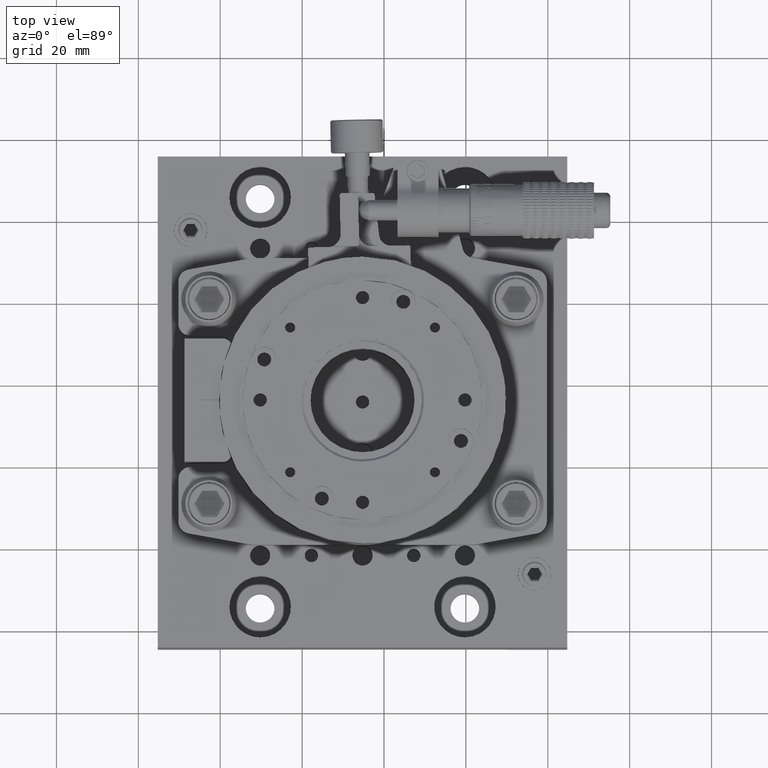
[diagram: clean part render]
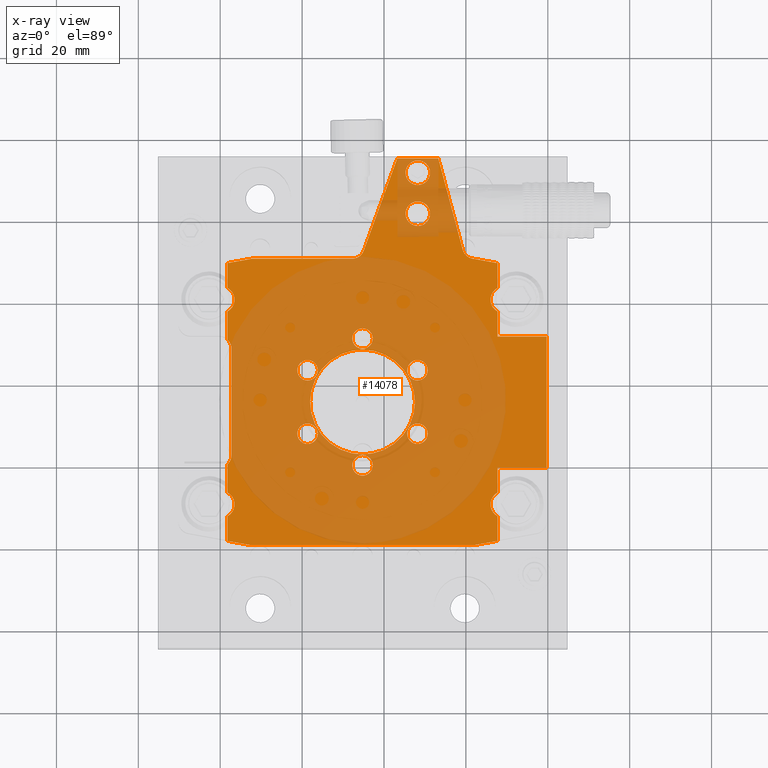
[diagram: x-ray — body ghosted, one internal face saturated and labeled with its STEP entity id]
A machine part, top view, then the same camera in x-ray: the body is ghosted and one INTERNAL B-rep face — a face not visible from any outside direction — is saturated and labeled: STEP entity #14078.
In plain terms, the highlighted planar face has unit normal (0, 0, -1).
Its self-contained STEP definition (entity closure, byte-faithful):
#8376=FACE_BOUND('',#26593,.T.);
#8377=FACE_BOUND('',#26594,.T.);
#8378=FACE_BOUND('',#26595,.T.);
#8379=FACE_BOUND('',#26596,.T.);
#8380=FACE_BOUND('',#26597,.T.);
#8381=FACE_BOUND('',#26598,.T.);
#8382=FACE_BOUND('',#26599,.T.);
#8383=FACE_BOUND('',#26600,.T.);
#8384=FACE_BOUND('',#26601,.T.);
#14078=ADVANCED_FACE('',(#20103,#8376,#8377,#8378,#8379,#8380,#8381,#8382,
#8383,#8384),#110130,.T.);
#20103=FACE_OUTER_BOUND('',#26592,.T.);
#26592=EDGE_LOOP('',(#58531,#58532,#58533,#58534,#58535,#58536,#58537,#58538,
#58539,#58540,#58541,#58542,#58543,#58544,#58545,#58546,#58547,#58548,#58549,
#58550,#58551,#58552,#58553,#58554,#58555,#58556,#58557,#58558,#58559));
#26593=EDGE_LOOP('',(#58560,#58561,#58562,#58563));
#26594=EDGE_LOOP('',(#58564,#58565,#58566,#58567));
#26595=EDGE_LOOP('',(#58568,#58569,#58570,#58571));
#26596=EDGE_LOOP('',(#58572,#58573,#58574,#58575));
#26597=EDGE_LOOP('',(#58576,#58577,#58578,#58579));
#26598=EDGE_LOOP('',(#58580,#58581,#58582,#58583));
#26599=EDGE_LOOP('',(#58584,#58585,#58586,#58587));
#26600=EDGE_LOOP('',(#58588,#58589,#58590,#58591));
#26601=EDGE_LOOP('',(#58592,#58593));
#58531=ORIENTED_EDGE('',*,*,#76863,.F.);
#58532=ORIENTED_EDGE('',*,*,#77106,.F.);
#58533=ORIENTED_EDGE('',*,*,#76864,.F.);
#58534=ORIENTED_EDGE('',*,*,#77097,.F.);
#58535=ORIENTED_EDGE('',*,*,#76856,.T.);
#58536=ORIENTED_EDGE('',*,*,#77011,.F.);
#58537=ORIENTED_EDGE('',*,*,#76854,.T.);
#58538=ORIENTED_EDGE('',*,*,#77086,.F.);
#58539=ORIENTED_EDGE('',*,*,#76865,.F.);
#58540=ORIENTED_EDGE('',*,*,#77077,.F.);
#58541=ORIENTED_EDGE('',*,*,#76866,.F.);
#58542=ORIENTED_EDGE('',*,*,#77020,.F.);
#58543=ORIENTED_EDGE('',*,*,#76867,.F.);
#58544=ORIENTED_EDGE('',*,*,#77066,.F.);
#58545=ORIENTED_EDGE('',*,*,#76868,.F.);
#58546=ORIENTED_EDGE('',*,*,#76935,.F.);
#58547=ORIENTED_EDGE('',*,*,#76932,.F.);
#58548=ORIENTED_EDGE('',*,*,#76869,.F.);
#58549=ORIENTED_EDGE('',*,*,#76915,.F.);
#58550=ORIENTED_EDGE('',*,*,#76912,.F.);
#58551=ORIENTED_EDGE('',*,*,#76907,.F.);
#58552=ORIENTED_EDGE('',*,*,#76860,.T.);
#58553=ORIENTED_EDGE('',*,*,#76901,.F.);
#58554=ORIENTED_EDGE('',*,*,#76870,.F.);
#58555=ORIENTED_EDGE('',*,*,#76871,.F.);
#58556=ORIENTED_EDGE('',*,*,#76872,.F.);
#58557=ORIENTED_EDGE('',*,*,#76873,.F.);
#58558=ORIENTED_EDGE('',*,*,#76848,.T.);
#58559=ORIENTED_EDGE('',*,*,#76890,.F.);
#58560=ORIENTED_EDGE('',*,*,#76953,.T.);
#58561=ORIENTED_EDGE('',*,*,#76952,.T.);
#58562=ORIENTED_EDGE('',*,*,#77137,.F.);
#58563=ORIENTED_EDGE('',*,*,#76957,.F.);
#58564=ORIENTED_EDGE('',*,*,#76960,.T.);
#58565=ORIENTED_EDGE('',*,*,#76959,.T.);
#58566=ORIENTED_EDGE('',*,*,#77140,.F.);
#58567=ORIENTED_EDGE('',*,*,#76964,.F.);
#58568=ORIENTED_EDGE('',*,*,#76967,.T.);
#58569=ORIENTED_EDGE('',*,*,#76966,.T.);
#58570=ORIENTED_EDGE('',*,*,#77143,.F.);
#58571=ORIENTED_EDGE('',*,*,#76971,.F.);
#58572=ORIENTED_EDGE('',*,*,#76974,.T.);
#58573=ORIENTED_EDGE('',*,*,#76973,.T.);
#58574=ORIENTED_EDGE('',*,*,#77146,.F.);
#58575=ORIENTED_EDGE('',*,*,#76978,.F.);
#58576=ORIENTED_EDGE('',*,*,#76981,.T.);
#58577=ORIENTED_EDGE('',*,*,#76980,.T.);
#58578=ORIENTED_EDGE('',*,*,#77149,.F.);
#58579=ORIENTED_EDGE('',*,*,#76985,.F.);
#58580=ORIENTED_EDGE('',*,*,#77151,.F.);
#58581=ORIENTED_EDGE('',*,*,#76987,.F.);
#58582=ORIENTED_EDGE('',*,*,#76992,.T.);
#58583=ORIENTED_EDGE('',*,*,#76991,.T.);
#58584=ORIENTED_EDGE('',*,*,#76939,.T.);
#58585=ORIENTED_EDGE('',*,*,#76938,.T.);
#58586=ORIENTED_EDGE('',*,*,#77131,.F.);
#58587=ORIENTED_EDGE('',*,*,#76943,.F.);
#58588=ORIENTED_EDGE('',*,*,#76946,.T.);
#58589=ORIENTED_EDGE('',*,*,#76945,.T.);
#58590=ORIENTED_EDGE('',*,*,#77134,.F.);
#58591=ORIENTED_EDGE('',*,*,#76950,.F.);
#58592=ORIENTED_EDGE('',*,*,#76999,.F.);
#58593=ORIENTED_EDGE('',*,*,#76998,.F.);
#76848=EDGE_CURVE('',#104945,#104943,#92379,.T.);
#76854=EDGE_CURVE('',#104948,#104950,#92385,.T.);
#76856=EDGE_CURVE('',#104953,#104951,#92387,.T.);
#76860=EDGE_CURVE('',#104957,#104955,#92391,.T.);
#76863=EDGE_CURVE('',#104960,#104959,#92394,.T.);
#76864=EDGE_CURVE('',#104962,#104961,#92395,.T.);
#76865=EDGE_CURVE('',#104964,#104963,#92396,.T.);
#76866=EDGE_CURVE('',#104966,#104965,#92397,.T.);
#76867=EDGE_CURVE('',#104968,#104967,#92398,.T.);
#76868=EDGE_CURVE('',#104970,#104969,#92399,.T.);
#76869=EDGE_CURVE('',#104973,#104972,#92400,.T.);
#76870=EDGE_CURVE('',#104977,#104976,#92401,.T.);
#76871=EDGE_CURVE('',#104978,#104977,#92402,.T.);
#76872=EDGE_CURVE('',#104979,#104978,#92403,.T.);
#76873=EDGE_CURVE('',#104945,#104979,#92404,.T.);
#76890=EDGE_CURVE('',#104959,#104943,#94435,.T.);
#76901=EDGE_CURVE('',#104976,#104955,#94439,.T.);
#76907=EDGE_CURVE('',#104957,#104975,#92430,.T.);
#76912=EDGE_CURVE('',#104975,#104974,#94443,.T.);
#76915=EDGE_CURVE('',#104974,#104973,#92436,.T.);
#76932=EDGE_CURVE('',#104972,#104971,#92453,.T.);
#76935=EDGE_CURVE('',#104971,#104970,#94445,.T.);
#76938=EDGE_CURVE('',#105051,#104992,#94447,.T.);
#76939=EDGE_CURVE('',#104993,#105051,#94448,.T.);
#76943=EDGE_CURVE('',#104993,#105141,#94452,.T.);
#76945=EDGE_CURVE('',#105056,#104994,#94453,.T.);
#76946=EDGE_CURVE('',#104995,#105056,#94454,.T.);
#76950=EDGE_CURVE('',#104995,#105143,#94458,.T.);
#76952=EDGE_CURVE('',#105061,#104980,#94459,.T.);
#76953=EDGE_CURVE('',#104981,#105061,#94460,.T.);
#76957=EDGE_CURVE('',#104981,#105145,#94464,.T.);
#76959=EDGE_CURVE('',#105066,#104982,#94465,.T.);
#76960=EDGE_CURVE('',#104983,#105066,#94466,.T.);
#76964=EDGE_CURVE('',#104983,#105147,#94470,.T.);
#76966=EDGE_CURVE('',#105071,#104984,#94471,.T.);
#76967=EDGE_CURVE('',#104985,#105071,#94472,.T.);
#76971=EDGE_CURVE('',#104985,#105149,#94476,.T.);
#76973=EDGE_CURVE('',#105076,#104986,#94477,.T.);
#76974=EDGE_CURVE('',#104987,#105076,#94478,.T.);
#76978=EDGE_CURVE('',#104987,#105151,#94482,.T.);
#76980=EDGE_CURVE('',#105081,#104988,#94483,.T.);
#76981=EDGE_CURVE('',#104989,#105081,#94484,.T.);
#76985=EDGE_CURVE('',#104989,#105153,#94488,.T.);
#76987=EDGE_CURVE('',#104990,#105155,#94489,.T.);
#76991=EDGE_CURVE('',#105089,#104991,#94493,.T.);
#76992=EDGE_CURVE('',#104990,#105089,#94494,.T.);
#76998=EDGE_CURVE('',#104997,#104996,#94498,.T.);
#76999=EDGE_CURVE('',#104996,#104997,#94499,.T.);
#77011=EDGE_CURVE('',#104948,#104951,#94505,.T.);
#77020=EDGE_CURVE('',#104967,#104966,#94509,.T.);
#77066=EDGE_CURVE('',#104969,#104968,#92500,.T.);
#77077=EDGE_CURVE('',#104965,#104964,#94536,.T.);
#77086=EDGE_CURVE('',#104963,#104950,#94541,.T.);
#77097=EDGE_CURVE('',#104953,#104962,#92517,.T.);
#77106=EDGE_CURVE('',#104961,#104960,#92526,.T.);
#77131=EDGE_CURVE('',#105141,#104992,#94559,.T.);
#77134=EDGE_CURVE('',#105143,#104994,#94561,.T.);
#77137=EDGE_CURVE('',#105145,#104980,#94563,.T.);
#77140=EDGE_CURVE('',#105147,#104982,#94565,.T.);
#77143=EDGE_CURVE('',#105149,#104984,#94567,.T.);
#77146=EDGE_CURVE('',#105151,#104986,#94569,.T.);
#77149=EDGE_CURVE('',#105153,#104988,#94571,.T.);
#77151=EDGE_CURVE('',#105155,#104991,#94572,.T.);
#92379=B_SPLINE_CURVE_WITH_KNOTS('',1,(#188936,#188937),.UNSPECIFIED.,.F.,
 .F.,(2,2),(-6.1168593513323,0.),.UNSPECIFIED.);
#92385=B_SPLINE_CURVE_WITH_KNOTS('',1,(#188948,#188949),.UNSPECIFIED.,.F.,
 .F.,(2,2),(-6.8807913738324,0.),.UNSPECIFIED.);
#92387=B_SPLINE_CURVE_WITH_KNOTS('',1,(#188952,#188953),.UNSPECIFIED.,.F.,
 .F.,(2,2),(-6.03728895565673,0.),.UNSPECIFIED.);
#92391=B_SPLINE_CURVE_WITH_KNOTS('',1,(#188960,#188961),.UNSPECIFIED.,.F.,
 .F.,(2,2),(-6.0372889556568,0.),.UNSPECIFIED.);
#92394=B_SPLINE_CURVE_WITH_KNOTS('',1,(#188966,#188967),.UNSPECIFIED.,.F.,
 .F.,(2,2),(-6.03728895565672,0.),.UNSPECIFIED.);
#92395=B_SPLINE_CURVE_WITH_KNOTS('',1,(#188968,#188969),.UNSPECIFIED.,.F.,
 .F.,(2,2),(-54.,0.),.UNSPECIFIED.);
#92396=B_SPLINE_CURVE_WITH_KNOTS('',1,(#188970,#188971),.UNSPECIFIED.,.F.,
 .F.,(2,2),(-26.,0.),.UNSPECIFIED.);
#92397=B_SPLINE_CURVE_WITH_KNOTS('',1,(#188972,#188973),.UNSPECIFIED.,.F.,
 .F.,(2,2),(-6.8807913738325,0.),.UNSPECIFIED.);
#92398=B_SPLINE_CURVE_WITH_KNOTS('',1,(#188974,#188975),.UNSPECIFIED.,.F.,
 .F.,(2,2),(-6.0372889556566,0.),.UNSPECIFIED.);
#92399=B_SPLINE_CURVE_WITH_KNOTS('',1,(#188976,#188977),.UNSPECIFIED.,.F.,
 .F.,(2,2),(-24.482106645849,0.),.UNSPECIFIED.);
#92400=B_SPLINE_CURVE_WITH_KNOTS('',1,(#188978,#188979),.UNSPECIFIED.,.F.,
 .F.,(2,2),(-10.,0.),.UNSPECIFIED.);
#92401=B_SPLINE_CURVE_WITH_KNOTS('',1,(#188980,#188981),.UNSPECIFIED.,.F.,
 .F.,(2,2),(-6.1168593513322,0.),.UNSPECIFIED.);
#92402=B_SPLINE_CURVE_WITH_KNOTS('',1,(#188982,#188983),.UNSPECIFIED.,.F.,
 .F.,(2,2),(-12.,0.),.UNSPECIFIED.);
#92403=B_SPLINE_CURVE_WITH_KNOTS('',1,(#188984,#188985),.UNSPECIFIED.,.F.,
 .F.,(2,2),(-32.0000000000001,0.),.UNSPECIFIED.);
#92404=B_SPLINE_CURVE_WITH_KNOTS('',1,(#188986,#188987),.UNSPECIFIED.,.F.,
 .F.,(2,2),(-12.,0.),.UNSPECIFIED.);
#92430=B_SPLINE_CURVE_WITH_KNOTS('',1,(#189070,#189071),.UNSPECIFIED.,.F.,
 .F.,(2,2),(0.,6.25841408754498),.UNSPECIFIED.);
#92436=B_SPLINE_CURVE_WITH_KNOTS('',1,(#189088,#189089),.UNSPECIFIED.,.F.,
 .F.,(2,2),(0.,23.081659550635),.UNSPECIFIED.);
#92453=B_SPLINE_CURVE_WITH_KNOTS('',1,(#189122,#189123),.UNSPECIFIED.,.F.,
 .F.,(2,2),(0.,23.9717328110307),.UNSPECIFIED.);
#92500=B_SPLINE_CURVE_WITH_KNOTS('',1,(#189543,#189544),.UNSPECIFIED.,.F.,
 .F.,(2,2),(0.,6.09634909099047),.UNSPECIFIED.);
#92517=B_SPLINE_CURVE_WITH_KNOTS('',1,(#189619,#189620),.UNSPECIFIED.,.F.,
 .F.,(2,2),(0.,6.09634909099047),.UNSPECIFIED.);
#92526=B_SPLINE_CURVE_WITH_KNOTS('',1,(#189637,#189638),.UNSPECIFIED.,.F.,
 .F.,(2,2),(0.,6.09634909099037),.UNSPECIFIED.);
#94435=(
BOUNDED_CURVE()
B_SPLINE_CURVE(2,(#189020,#189021,#189022,#189023,#189024),
 .UNSPECIFIED.,.F.,.F.)
B_SPLINE_CURVE_WITH_KNOTS((3,2,3),(0.,3.54596998963723,7.09193997927446),
 .UNSPECIFIED.)
CURVE()
GEOMETRIC_REPRESENTATION_ITEM()
RATIONAL_B_SPLINE_CURVE((1.,0.85485041426511,1.,0.85485041426511,1.))
REPRESENTATION_ITEM('')
);
#94439=(
BOUNDED_CURVE()
B_SPLINE_CURVE(2,(#189050,#189051,#189052,#189053,#189054),
 .UNSPECIFIED.,.F.,.F.)
B_SPLINE_CURVE_WITH_KNOTS((3,2,3),(0.,3.54596998963722,7.09193997927443),
 .UNSPECIFIED.)
CURVE()
GEOMETRIC_REPRESENTATION_ITEM()
RATIONAL_B_SPLINE_CURVE((1.,0.854850414265111,1.,0.854850414265111,1.))
REPRESENTATION_ITEM('')
);
#94443=(
BOUNDED_CURVE()
B_SPLINE_CURVE(2,(#189080,#189081,#189082),.UNSPECIFIED.,.F.,.F.)
B_SPLINE_CURVE_WITH_KNOTS((3,3),(0.,3.39292006587697),.UNSPECIFIED.)
CURVE()
GEOMETRIC_REPRESENTATION_ITEM()
RATIONAL_B_SPLINE_CURVE((1.,0.844327925502015,1.))
REPRESENTATION_ITEM('')
);
#94445=(
BOUNDED_CURVE()
B_SPLINE_CURVE(2,(#189128,#189129,#189130),.UNSPECIFIED.,.F.,.F.)
B_SPLINE_CURVE_WITH_KNOTS((3,3),(0.,3.66519142918808),.UNSPECIFIED.)
CURVE()
GEOMETRIC_REPRESENTATION_ITEM()
RATIONAL_B_SPLINE_CURVE((1.,0.819152044288989,1.))
REPRESENTATION_ITEM('')
);
#94447=(
BOUNDED_CURVE()
B_SPLINE_CURVE(2,(#189136,#189137,#189138),.UNSPECIFIED.,.F.,.F.)
B_SPLINE_CURVE_WITH_KNOTS((3,3),(-4.71238898038469,0.),.UNSPECIFIED.)
CURVE()
GEOMETRIC_REPRESENTATION_ITEM()
RATIONAL_B_SPLINE_CURVE((1.,0.707106781186548,1.))
REPRESENTATION_ITEM('')
);
#94448=(
BOUNDED_CURVE()
B_SPLINE_CURVE(2,(#189139,#189140,#189141),.UNSPECIFIED.,.F.,.F.)
B_SPLINE_CURVE_WITH_KNOTS((3,3),(-9.42477796076938,-4.71238898038469),
 .UNSPECIFIED.)
CURVE()
GEOMETRIC_REPRESENTATION_ITEM()
RATIONAL_B_SPLINE_CURVE((1.,0.707106781186548,1.))
REPRESENTATION_ITEM('')
);
#94452=(
BOUNDED_CURVE()
B_SPLINE_CURVE(2,(#189151,#189152,#189153),.UNSPECIFIED.,.F.,.F.)
B_SPLINE_CURVE_WITH_KNOTS((3,3),(0.,4.71238898038469),.UNSPECIFIED.)
CURVE()
GEOMETRIC_REPRESENTATION_ITEM()
RATIONAL_B_SPLINE_CURVE((1.,0.707106781186548,1.))
REPRESENTATION_ITEM('')
);
#94453=(
BOUNDED_CURVE()
B_SPLINE_CURVE(2,(#189156,#189157,#189158),.UNSPECIFIED.,.F.,.F.)
B_SPLINE_CURVE_WITH_KNOTS((3,3),(-4.71238898038469,0.),.UNSPECIFIED.)
CURVE()
GEOMETRIC_REPRESENTATION_ITEM()
RATIONAL_B_SPLINE_CURVE((1.,0.707106781186548,1.))
REPRESENTATION_ITEM('')
);
#94454=(
BOUNDED_CURVE()
B_SPLINE_CURVE(2,(#189159,#189160,#189161),.UNSPECIFIED.,.F.,.F.)
B_SPLINE_CURVE_WITH_KNOTS((3,3),(-9.42477796076938,-4.71238898038469),
 .UNSPECIFIED.)
CURVE()
GEOMETRIC_REPRESENTATION_ITEM()
RATIONAL_B_SPLINE_CURVE((1.,0.707106781186548,1.))
REPRESENTATION_ITEM('')
);
#94458=(
BOUNDED_CURVE()
B_SPLINE_CURVE(2,(#189171,#189172,#189173),.UNSPECIFIED.,.F.,.F.)
B_SPLINE_CURVE_WITH_KNOTS((3,3),(0.,4.71238898038469),.UNSPECIFIED.)
CURVE()
GEOMETRIC_REPRESENTATION_ITEM()
RATIONAL_B_SPLINE_CURVE((1.,0.707106781186548,1.))
REPRESENTATION_ITEM('')
);
#94459=(
BOUNDED_CURVE()
B_SPLINE_CURVE(2,(#189176,#189177,#189178),.UNSPECIFIED.,.F.,.F.)
B_SPLINE_CURVE_WITH_KNOTS((3,3),(-3.92699081698724,0.),.UNSPECIFIED.)
CURVE()
GEOMETRIC_REPRESENTATION_ITEM()
RATIONAL_B_SPLINE_CURVE((1.,0.707106781186548,1.))
REPRESENTATION_ITEM('')
);
#94460=(
BOUNDED_CURVE()
B_SPLINE_CURVE(2,(#189179,#189180,#189181),.UNSPECIFIED.,.F.,.F.)
B_SPLINE_CURVE_WITH_KNOTS((3,3),(-7.85398163397448,-3.92699081698724),
 .UNSPECIFIED.)
CURVE()
GEOMETRIC_REPRESENTATION_ITEM()
RATIONAL_B_SPLINE_CURVE((1.,0.707106781186548,1.))
REPRESENTATION_ITEM('')
);
#94464=(
BOUNDED_CURVE()
B_SPLINE_CURVE(2,(#189191,#189192,#189193),.UNSPECIFIED.,.F.,.F.)
B_SPLINE_CURVE_WITH_KNOTS((3,3),(0.,3.92699081698724),.UNSPECIFIED.)
CURVE()
GEOMETRIC_REPRESENTATION_ITEM()
RATIONAL_B_SPLINE_CURVE((1.,0.707106781186548,1.))
REPRESENTATION_ITEM('')
);
#94465=(
BOUNDED_CURVE()
B_SPLINE_CURVE(2,(#189196,#189197,#189198),.UNSPECIFIED.,.F.,.F.)
B_SPLINE_CURVE_WITH_KNOTS((3,3),(-3.92699081698724,0.),.UNSPECIFIED.)
CURVE()
GEOMETRIC_REPRESENTATION_ITEM()
RATIONAL_B_SPLINE_CURVE((1.,0.707106781186548,1.))
REPRESENTATION_ITEM('')
);
#94466=(
BOUNDED_CURVE()
B_SPLINE_CURVE(2,(#189199,#189200,#189201),.UNSPECIFIED.,.F.,.F.)
B_SPLINE_CURVE_WITH_KNOTS((3,3),(-7.85398163397448,-3.92699081698724),
 .UNSPECIFIED.)
CURVE()
GEOMETRIC_REPRESENTATION_ITEM()
RATIONAL_B_SPLINE_CURVE((1.,0.707106781186548,1.))
REPRESENTATION_ITEM('')
);
#94470=(
BOUNDED_CURVE()
B_SPLINE_CURVE(2,(#189211,#189212,#189213),.UNSPECIFIED.,.F.,.F.)
B_SPLINE_CURVE_WITH_KNOTS((3,3),(0.,3.92699081698724),.UNSPECIFIED.)
CURVE()
GEOMETRIC_REPRESENTATION_ITEM()
RATIONAL_B_SPLINE_CURVE((1.,0.707106781186548,1.))
REPRESENTATION_ITEM('')
);
#94471=(
BOUNDED_CURVE()
B_SPLINE_CURVE(2,(#189216,#189217,#189218),.UNSPECIFIED.,.F.,.F.)
B_SPLINE_CURVE_WITH_KNOTS((3,3),(-3.92699081698724,0.),.UNSPECIFIED.)
CURVE()
GEOMETRIC_REPRESENTATION_ITEM()
RATIONAL_B_SPLINE_CURVE((1.,0.707106781186548,1.))
REPRESENTATION_ITEM('')
);
#94472=(
BOUNDED_CURVE()
B_SPLINE_CURVE(2,(#189219,#189220,#189221),.UNSPECIFIED.,.F.,.F.)
B_SPLINE_CURVE_WITH_KNOTS((3,3),(-7.85398163397448,-3.92699081698724),
 .UNSPECIFIED.)
CURVE()
GEOMETRIC_REPRESENTATION_ITEM()
RATIONAL_B_SPLINE_CURVE((1.,0.707106781186548,1.))
REPRESENTATION_ITEM('')
);
#94476=(
BOUNDED_CURVE()
B_SPLINE_CURVE(2,(#189231,#189232,#189233),.UNSPECIFIED.,.F.,.F.)
B_SPLINE_CURVE_WITH_KNOTS((3,3),(0.,3.92699081698724),.UNSPECIFIED.)
CURVE()
GEOMETRIC_REPRESENTATION_ITEM()
RATIONAL_B_SPLINE_CURVE((1.,0.707106781186548,1.))
REPRESENTATION_ITEM('')
);
#94477=(
BOUNDED_CURVE()
B_SPLINE_CURVE(2,(#189236,#189237,#189238),.UNSPECIFIED.,.F.,.F.)
B_SPLINE_CURVE_WITH_KNOTS((3,3),(-3.92699081698724,0.),.UNSPECIFIED.)
CURVE()
GEOMETRIC_REPRESENTATION_ITEM()
RATIONAL_B_SPLINE_CURVE((1.,0.707106781186548,1.))
REPRESENTATION_ITEM('')
);
#94478=(
BOUNDED_CURVE()
B_SPLINE_CURVE(2,(#189239,#189240,#189241),.UNSPECIFIED.,.F.,.F.)
B_SPLINE_CURVE_WITH_KNOTS((3,3),(-7.85398163397448,-3.92699081698724),
 .UNSPECIFIED.)
CURVE()
GEOMETRIC_REPRESENTATION_ITEM()
RATIONAL_B_SPLINE_CURVE((1.,0.707106781186548,1.))
REPRESENTATION_ITEM('')
);
#94482=(
BOUNDED_CURVE()
B_SPLINE_CURVE(2,(#189251,#189252,#189253),.UNSPECIFIED.,.F.,.F.)
B_SPLINE_CURVE_WITH_KNOTS((3,3),(0.,3.92699081698724),.UNSPECIFIED.)
CURVE()
GEOMETRIC_REPRESENTATION_ITEM()
RATIONAL_B_SPLINE_CURVE((1.,0.707106781186548,1.))
REPRESENTATION_ITEM('')
);
#94483=(
BOUNDED_CURVE()
B_SPLINE_CURVE(2,(#189256,#189257,#189258),.UNSPECIFIED.,.F.,.F.)
B_SPLINE_CURVE_WITH_KNOTS((3,3),(-3.92699081698724,0.),.UNSPECIFIED.)
CURVE()
GEOMETRIC_REPRESENTATION_ITEM()
RATIONAL_B_SPLINE_CURVE((1.,0.707106781186548,1.))
REPRESENTATION_ITEM('')
);
#94484=(
BOUNDED_CURVE()
B_SPLINE_CURVE(2,(#189259,#189260,#189261),.UNSPECIFIED.,.F.,.F.)
B_SPLINE_CURVE_WITH_KNOTS((3,3),(-7.85398163397448,-3.92699081698724),
 .UNSPECIFIED.)
CURVE()
GEOMETRIC_REPRESENTATION_ITEM()
RATIONAL_B_SPLINE_CURVE((1.,0.707106781186548,1.))
REPRESENTATION_ITEM('')
);
#94488=(
BOUNDED_CURVE()
B_SPLINE_CURVE(2,(#189271,#189272,#189273),.UNSPECIFIED.,.F.,.F.)
B_SPLINE_CURVE_WITH_KNOTS((3,3),(0.,3.92699081698724),.UNSPECIFIED.)
CURVE()
GEOMETRIC_REPRESENTATION_ITEM()
RATIONAL_B_SPLINE_CURVE((1.,0.707106781186548,1.))
REPRESENTATION_ITEM('')
);
#94489=(
BOUNDED_CURVE()
B_SPLINE_CURVE(2,(#189276,#189277,#189278),.UNSPECIFIED.,.F.,.F.)
B_SPLINE_CURVE_WITH_KNOTS((3,3),(0.,3.92699081698724),.UNSPECIFIED.)
CURVE()
GEOMETRIC_REPRESENTATION_ITEM()
RATIONAL_B_SPLINE_CURVE((1.,0.707106781186548,1.))
REPRESENTATION_ITEM('')
);
#94493=(
BOUNDED_CURVE()
B_SPLINE_CURVE(2,(#189288,#189289,#189290),.UNSPECIFIED.,.F.,.F.)
B_SPLINE_CURVE_WITH_KNOTS((3,3),(-3.92699081698724,0.),.UNSPECIFIED.)
CURVE()
GEOMETRIC_REPRESENTATION_ITEM()
RATIONAL_B_SPLINE_CURVE((1.,0.707106781186548,1.))
REPRESENTATION_ITEM('')
);
#94494=(
BOUNDED_CURVE()
B_SPLINE_CURVE(2,(#189291,#189292,#189293),.UNSPECIFIED.,.F.,.F.)
B_SPLINE_CURVE_WITH_KNOTS((3,3),(-7.85398163397448,-3.92699081698724),
 .UNSPECIFIED.)
CURVE()
GEOMETRIC_REPRESENTATION_ITEM()
RATIONAL_B_SPLINE_CURVE((1.,0.707106781186548,1.))
REPRESENTATION_ITEM('')
);
#94498=(
BOUNDED_CURVE()
B_SPLINE_CURVE(2,(#189313,#189314,#189315,#189316,#189317),
 .UNSPECIFIED.,.F.,.F.)
B_SPLINE_CURVE_WITH_KNOTS((3,2,3),(0.,20.1061929829747,40.2123859659494),
 .UNSPECIFIED.)
CURVE()
GEOMETRIC_REPRESENTATION_ITEM()
RATIONAL_B_SPLINE_CURVE((1.,0.707106781186548,1.,0.707106781186548,1.))
REPRESENTATION_ITEM('')
);
#94499=(
BOUNDED_CURVE()
B_SPLINE_CURVE(2,(#189318,#189319,#189320,#189321,#189322),
 .UNSPECIFIED.,.F.,.F.)
B_SPLINE_CURVE_WITH_KNOTS((3,2,3),(0.,20.1061929829747,40.2123859659494),
 .UNSPECIFIED.)
CURVE()
GEOMETRIC_REPRESENTATION_ITEM()
RATIONAL_B_SPLINE_CURVE((1.,0.707106781186548,1.,0.707106781186548,1.))
REPRESENTATION_ITEM('')
);
#94505=(
BOUNDED_CURVE()
B_SPLINE_CURVE(2,(#189356,#189357,#189358,#189359,#189360),
 .UNSPECIFIED.,.F.,.F.)
B_SPLINE_CURVE_WITH_KNOTS((3,2,3),(0.,3.54596998963727,7.09193997927455),
 .UNSPECIFIED.)
CURVE()
GEOMETRIC_REPRESENTATION_ITEM()
RATIONAL_B_SPLINE_CURVE((1.,0.854850414265101,1.,0.854850414265101,1.))
REPRESENTATION_ITEM('')
);
#94509=(
BOUNDED_CURVE()
B_SPLINE_CURVE(2,(#189382,#189383,#189384,#189385,#189386),
 .UNSPECIFIED.,.F.,.F.)
B_SPLINE_CURVE_WITH_KNOTS((3,2,3),(0.,3.54596998963732,7.09193997927464),
 .UNSPECIFIED.)
CURVE()
GEOMETRIC_REPRESENTATION_ITEM()
RATIONAL_B_SPLINE_CURVE((1.,0.854850414265104,1.,0.854850414265104,1.))
REPRESENTATION_ITEM('')
);
#94536=(
BOUNDED_CURVE()
B_SPLINE_CURVE(2,(#189569,#189570,#189571),.UNSPECIFIED.,.F.,.F.)
B_SPLINE_CURVE_WITH_KNOTS((3,3),(0.,2.5232060117038),.UNSPECIFIED.)
CURVE()
GEOMETRIC_REPRESENTATION_ITEM()
RATIONAL_B_SPLINE_CURVE((1.,0.912870929175279,1.))
REPRESENTATION_ITEM('')
);
#94541=(
BOUNDED_CURVE()
B_SPLINE_CURVE(2,(#189592,#189593,#189594),.UNSPECIFIED.,.F.,.F.)
B_SPLINE_CURVE_WITH_KNOTS((3,3),(0.,2.52320601170392),.UNSPECIFIED.)
CURVE()
GEOMETRIC_REPRESENTATION_ITEM()
RATIONAL_B_SPLINE_CURVE((1.,0.912870929175295,1.))
REPRESENTATION_ITEM('')
);
#94559=(
BOUNDED_CURVE()
B_SPLINE_CURVE(2,(#189752,#189753,#189754),.UNSPECIFIED.,.F.,.F.)
B_SPLINE_CURVE_WITH_KNOTS((3,3),(4.71238898038469,9.42477796076938),
 .UNSPECIFIED.)
CURVE()
GEOMETRIC_REPRESENTATION_ITEM()
RATIONAL_B_SPLINE_CURVE((1.,0.707106781186547,1.))
REPRESENTATION_ITEM('')
);
#94561=(
BOUNDED_CURVE()
B_SPLINE_CURVE(2,(#189760,#189761,#189762),.UNSPECIFIED.,.F.,.F.)
B_SPLINE_CURVE_WITH_KNOTS((3,3),(4.71238898038469,9.42477796076938),
 .UNSPECIFIED.)
CURVE()
GEOMETRIC_REPRESENTATION_ITEM()
RATIONAL_B_SPLINE_CURVE((1.,0.707106781186547,1.))
REPRESENTATION_ITEM('')
);
#94563=(
BOUNDED_CURVE()
B_SPLINE_CURVE(2,(#189768,#189769,#189770),.UNSPECIFIED.,.F.,.F.)
B_SPLINE_CURVE_WITH_KNOTS((3,3),(3.92699081698724,7.85398163397448),
 .UNSPECIFIED.)
CURVE()
GEOMETRIC_REPRESENTATION_ITEM()
RATIONAL_B_SPLINE_CURVE((1.,0.707106781186547,1.))
REPRESENTATION_ITEM('')
);
#94565=(
BOUNDED_CURVE()
B_SPLINE_CURVE(2,(#189776,#189777,#189778),.UNSPECIFIED.,.F.,.F.)
B_SPLINE_CURVE_WITH_KNOTS((3,3),(3.92699081698724,7.85398163397448),
 .UNSPECIFIED.)
CURVE()
GEOMETRIC_REPRESENTATION_ITEM()
RATIONAL_B_SPLINE_CURVE((1.,0.707106781186547,1.))
REPRESENTATION_ITEM('')
);
#94567=(
BOUNDED_CURVE()
B_SPLINE_CURVE(2,(#189784,#189785,#189786),.UNSPECIFIED.,.F.,.F.)
B_SPLINE_CURVE_WITH_KNOTS((3,3),(3.92699081698724,7.85398163397448),
 .UNSPECIFIED.)
CURVE()
GEOMETRIC_REPRESENTATION_ITEM()
RATIONAL_B_SPLINE_CURVE((1.,0.707106781186547,1.))
REPRESENTATION_ITEM('')
);
#94569=(
BOUNDED_CURVE()
B_SPLINE_CURVE(2,(#189792,#189793,#189794),.UNSPECIFIED.,.F.,.F.)
B_SPLINE_CURVE_WITH_KNOTS((3,3),(3.92699081698724,7.85398163397448),
 .UNSPECIFIED.)
CURVE()
GEOMETRIC_REPRESENTATION_ITEM()
RATIONAL_B_SPLINE_CURVE((1.,0.707106781186547,1.))
REPRESENTATION_ITEM('')
);
#94571=(
BOUNDED_CURVE()
B_SPLINE_CURVE(2,(#189800,#189801,#189802),.UNSPECIFIED.,.F.,.F.)
B_SPLINE_CURVE_WITH_KNOTS((3,3),(3.92699081698724,7.85398163397448),
 .UNSPECIFIED.)
CURVE()
GEOMETRIC_REPRESENTATION_ITEM()
RATIONAL_B_SPLINE_CURVE((1.,0.707106781186547,1.))
REPRESENTATION_ITEM('')
);
#94572=(
BOUNDED_CURVE()
B_SPLINE_CURVE(2,(#189805,#189806,#189807),.UNSPECIFIED.,.F.,.F.)
B_SPLINE_CURVE_WITH_KNOTS((3,3),(3.92699081698724,7.85398163397448),
 .UNSPECIFIED.)
CURVE()
GEOMETRIC_REPRESENTATION_ITEM()
RATIONAL_B_SPLINE_CURVE((1.,0.707106781186547,1.))
REPRESENTATION_ITEM('')
);
#104943=VERTEX_POINT('',#188222);
#104945=VERTEX_POINT('',#188224);
#104948=VERTEX_POINT('',#188227);
#104950=VERTEX_POINT('',#188229);
#104951=VERTEX_POINT('',#188230);
#104953=VERTEX_POINT('',#188232);
#104955=VERTEX_POINT('',#188234);
#104957=VERTEX_POINT('',#188236);
#104959=VERTEX_POINT('',#188238);
#104960=VERTEX_POINT('',#188239);
#104961=VERTEX_POINT('',#188240);
#104962=VERTEX_POINT('',#188241);
#104963=VERTEX_POINT('',#188242);
#104964=VERTEX_POINT('',#188243);
#104965=VERTEX_POINT('',#188244);
#104966=VERTEX_POINT('',#188245);
#104967=VERTEX_POINT('',#188246);
#104968=VERTEX_POINT('',#188247);
#104969=VERTEX_POINT('',#188248);
#104970=VERTEX_POINT('',#188249);
#104971=VERTEX_POINT('',#188250);
#104972=VERTEX_POINT('',#188251);
#104973=VERTEX_POINT('',#188252);
#104974=VERTEX_POINT('',#188253);
#104975=VERTEX_POINT('',#188254);
#104976=VERTEX_POINT('',#188255);
#104977=VERTEX_POINT('',#188256);
#104978=VERTEX_POINT('',#188257);
#104979=VERTEX_POINT('',#188258);
#104980=VERTEX_POINT('',#188259);
#104981=VERTEX_POINT('',#188260);
#104982=VERTEX_POINT('',#188261);
#104983=VERTEX_POINT('',#188262);
#104984=VERTEX_POINT('',#188263);
#104985=VERTEX_POINT('',#188264);
#104986=VERTEX_POINT('',#188265);
#104987=VERTEX_POINT('',#188266);
#104988=VERTEX_POINT('',#188267);
#104989=VERTEX_POINT('',#188268);
#104990=VERTEX_POINT('',#188269);
#104991=VERTEX_POINT('',#188270);
#104992=VERTEX_POINT('',#188271);
#104993=VERTEX_POINT('',#188272);
#104994=VERTEX_POINT('',#188273);
#104995=VERTEX_POINT('',#188274);
#104996=VERTEX_POINT('',#188275);
#104997=VERTEX_POINT('',#188276);
#105051=VERTEX_POINT('',#188330);
#105056=VERTEX_POINT('',#188335);
#105061=VERTEX_POINT('',#188340);
#105066=VERTEX_POINT('',#188345);
#105071=VERTEX_POINT('',#188350);
#105076=VERTEX_POINT('',#188355);
#105081=VERTEX_POINT('',#188360);
#105089=VERTEX_POINT('',#188368);
#105141=VERTEX_POINT('',#188420);
#105143=VERTEX_POINT('',#188422);
#105145=VERTEX_POINT('',#188424);
#105147=VERTEX_POINT('',#188426);
#105149=VERTEX_POINT('',#188428);
#105151=VERTEX_POINT('',#188430);
#105153=VERTEX_POINT('',#188432);
#105155=VERTEX_POINT('',#188434);
#110130=PLANE('',#115946);
#115946=AXIS2_PLACEMENT_3D('',#188080,#121094,$);
#121094=DIRECTION('',(0.,0.,-1.));
#188080=CARTESIAN_POINT('',(47.6701054007326,-48.977715650322,27.3001011709705));
#188222=CARTESIAN_POINT('',(27.7501054007327,-26.5245750016542,27.3001011709705));
#188224=CARTESIAN_POINT('',(27.7501054007327,-20.4077156503219,27.3001011709705));
#188227=CARTESIAN_POINT('',(-38.2498945992674,-26.5245750016541,27.3001011709705));
#188229=CARTESIAN_POINT('',(-38.2498945992674,-19.6437836278217,27.3001011709705));
#188230=CARTESIAN_POINT('',(-38.2498945992674,-32.2908562989895,27.3001011709705));
#188232=CARTESIAN_POINT('',(-38.2498945992674,-38.3281452546463,27.3001011709705));
#188234=CARTESIAN_POINT('',(27.7501054007327,23.4754249983458,27.3001011709705));
#188236=CARTESIAN_POINT('',(27.7501054007327,29.5127139540025,27.3001011709705));
#188238=CARTESIAN_POINT('',(27.7501054007327,-32.2908562989897,27.3001011709705));
#188239=CARTESIAN_POINT('',(27.7501054007326,-38.3281452546464,27.3001011709705));
#188240=CARTESIAN_POINT('',(21.7501054007326,-39.4077156503219,27.3001011709705));
#188241=CARTESIAN_POINT('',(-32.2498945992674,-39.4077156503218,27.3001011709705));
#188242=CARTESIAN_POINT('',(-37.2498945992673,-17.4077156503218,27.3001011709705));
#188243=CARTESIAN_POINT('',(-37.2498945992674,8.59228434967817,27.3001011709705));
#188244=CARTESIAN_POINT('',(-38.2498945992674,10.828352327178,27.3001011709705));
#188245=CARTESIAN_POINT('',(-38.2498945992673,17.7091437010105,27.3001011709705));
#188246=CARTESIAN_POINT('',(-38.2498945992673,23.475424998346,27.3001011709705));
#188247=CARTESIAN_POINT('',(-38.2498945992673,29.5127139540026,27.3001011709705));
#188248=CARTESIAN_POINT('',(-32.2498945992673,30.5922843496782,27.3001011709705));
#188249=CARTESIAN_POINT('',(-7.76778795341824,30.5922843496781,27.3001011709705));
#188250=CARTESIAN_POINT('',(-4.94871009106053,32.5662239197011,27.3001011709705));
#188251=CARTESIAN_POINT('',(3.25010540073289,55.0922843496781,27.3001011709705));
#188252=CARTESIAN_POINT('',(13.2501054007329,55.0922843496781,27.3001011709705));
#188253=CARTESIAN_POINT('',(19.2240784850097,32.797113276108,27.3001011709705));
#188254=CARTESIAN_POINT('',(21.5906017429182,30.6209835875079,27.3001011709705));
#188255=CARTESIAN_POINT('',(27.7501054007327,17.7091437010104,27.3001011709705));
#188256=CARTESIAN_POINT('',(27.7501054007327,11.5922843496782,27.3001011709705));
#188257=CARTESIAN_POINT('',(39.7501054007327,11.5922843496781,27.3001011709705));
#188258=CARTESIAN_POINT('',(39.7501054007326,-20.407715650322,27.3001011709705));
#188259=CARTESIAN_POINT('',(8.17349915939148,-14.6577156503219,27.3001011709705));
#188260=CARTESIAN_POINT('',(8.17349915939149,-9.65771565032191,27.3001011709705));
#188261=CARTESIAN_POINT('',(-5.24989459926734,-22.4077156503219,27.3001011709705));
#188262=CARTESIAN_POINT('',(-5.24989459926733,-17.4077156503219,27.3001011709705));
#188263=CARTESIAN_POINT('',(-18.6732883579261,-14.6577156503219,27.3001011709705));
#188264=CARTESIAN_POINT('',(-18.6732883579261,-9.65771565032186,27.3001011709705));
#188265=CARTESIAN_POINT('',(-18.6732883579261,0.842284349678138,27.3001011709705));
#188266=CARTESIAN_POINT('',(-18.6732883579261,5.84228434967814,27.3001011709705));
#188267=CARTESIAN_POINT('',(-5.24989459926729,8.59228434967812,27.3001011709705));
#188268=CARTESIAN_POINT('',(-5.24989459926727,13.5922843496781,27.3001011709705));
#188269=CARTESIAN_POINT('',(8.1734991593915,0.842284349678089,27.3001011709705));
#188270=CARTESIAN_POINT('',(8.17349915939151,5.84228434967809,27.3001011709705));
#188271=CARTESIAN_POINT('',(8.25010540073277,38.5922843496781,27.3001011709705));
#188272=CARTESIAN_POINT('',(8.25010540073278,44.5922843496781,27.3001011709705));
#188273=CARTESIAN_POINT('',(8.25010540073288,48.5922843496781,27.3001011709705));
#188274=CARTESIAN_POINT('',(8.25010540073289,54.5922843496781,27.3001011709705));
#188275=CARTESIAN_POINT('',(-5.24989459926733,-17.2077156503219,27.3001011709705));
#188276=CARTESIAN_POINT('',(-5.24989459926729,8.39228434967811,27.3001011709705));
#188330=CARTESIAN_POINT('',(5.25010540073277,41.5922843496781,27.3001011709705));
#188335=CARTESIAN_POINT('',(5.25010540073288,51.5922843496781,27.3001011709705));
#188340=CARTESIAN_POINT('',(5.67349915939148,-12.1577156503219,27.3001011709705));
#188345=CARTESIAN_POINT('',(-7.74989459926733,-19.9077156503219,27.3001011709705));
#188350=CARTESIAN_POINT('',(-21.1732883579261,-12.1577156503219,27.3001011709705));
#188355=CARTESIAN_POINT('',(-21.1732883579261,3.34228434967814,27.3001011709705));
#188360=CARTESIAN_POINT('',(-7.74989459926728,11.0922843496781,27.3001011709705));
#188368=CARTESIAN_POINT('',(10.6734991593915,3.34228434967809,27.3001011709705));
#188420=CARTESIAN_POINT('',(11.2501054007328,41.5922843496781,27.3001011709705));
#188422=CARTESIAN_POINT('',(11.2501054007329,51.5922843496781,27.3001011709705));
#188424=CARTESIAN_POINT('',(10.6734991593915,-12.1577156503219,27.3001011709705));
#188426=CARTESIAN_POINT('',(-2.74989459926733,-19.9077156503219,27.3001011709705));
#188428=CARTESIAN_POINT('',(-16.1732883579261,-12.1577156503219,27.3001011709705));
#188430=CARTESIAN_POINT('',(-16.1732883579261,3.34228434967814,27.3001011709705));
#188432=CARTESIAN_POINT('',(-2.74989459926728,11.0922843496781,27.3001011709705));
#188434=CARTESIAN_POINT('',(5.67349915939151,3.34228434967809,27.3001011709705));
#188936=CARTESIAN_POINT('',(27.7501054007327,-20.4077156503219,27.3001011709705));
#188937=CARTESIAN_POINT('',(27.7501054007327,-26.5245750016542,27.3001011709705));
#188948=CARTESIAN_POINT('',(-38.2498945992674,-26.5245750016541,27.3001011709705));
#188949=CARTESIAN_POINT('',(-38.2498945992674,-19.6437836278217,27.3001011709705));
#188952=CARTESIAN_POINT('',(-38.2498945992674,-38.3281452546463,27.3001011709705));
#188953=CARTESIAN_POINT('',(-38.2498945992674,-32.2908562989895,27.3001011709705));
#188960=CARTESIAN_POINT('',(27.7501054007327,29.5127139540025,27.3001011709705));
#188961=CARTESIAN_POINT('',(27.7501054007327,23.4754249983458,27.3001011709705));
#188966=CARTESIAN_POINT('',(27.7501054007326,-38.3281452546464,27.3001011709705));
#188967=CARTESIAN_POINT('',(27.7501054007327,-32.2908562989897,27.3001011709705));
#188968=CARTESIAN_POINT('',(-32.2498945992674,-39.4077156503218,27.3001011709705));
#188969=CARTESIAN_POINT('',(21.7501054007326,-39.4077156503219,27.3001011709705));
#188970=CARTESIAN_POINT('',(-37.2498945992674,8.59228434967817,27.3001011709705));
#188971=CARTESIAN_POINT('',(-37.2498945992673,-17.4077156503218,27.3001011709705));
#188972=CARTESIAN_POINT('',(-38.2498945992673,17.7091437010105,27.3001011709705));
#188973=CARTESIAN_POINT('',(-38.2498945992674,10.828352327178,27.3001011709705));
#188974=CARTESIAN_POINT('',(-38.2498945992673,29.5127139540026,27.3001011709705));
#188975=CARTESIAN_POINT('',(-38.2498945992673,23.475424998346,27.3001011709705));
#188976=CARTESIAN_POINT('',(-7.76778795341824,30.5922843496781,27.3001011709705));
#188977=CARTESIAN_POINT('',(-32.2498945992673,30.5922843496782,27.3001011709705));
#188978=CARTESIAN_POINT('',(13.2501054007329,55.0922843496781,27.3001011709705));
#188979=CARTESIAN_POINT('',(3.25010540073289,55.0922843496781,27.3001011709705));
#188980=CARTESIAN_POINT('',(27.7501054007327,11.5922843496782,27.3001011709705));
#188981=CARTESIAN_POINT('',(27.7501054007327,17.7091437010104,27.3001011709705));
#188982=CARTESIAN_POINT('',(39.7501054007327,11.5922843496781,27.3001011709705));
#188983=CARTESIAN_POINT('',(27.7501054007327,11.5922843496782,27.3001011709705));
#188984=CARTESIAN_POINT('',(39.7501054007326,-20.407715650322,27.3001011709705));
#188985=CARTESIAN_POINT('',(39.7501054007327,11.5922843496781,27.3001011709705));
#188986=CARTESIAN_POINT('',(27.7501054007327,-20.4077156503219,27.3001011709705));
#188987=CARTESIAN_POINT('',(39.7501054007326,-20.407715650322,27.3001011709705));
#189020=CARTESIAN_POINT('',(27.7501054007326,-32.2908562989897,27.3001011709705));
#189021=CARTESIAN_POINT('',(26.0001054007326,-31.3803908309893,27.3001011709705));
#189022=CARTESIAN_POINT('',(26.0001054007326,-29.4077156503219,27.3001011709705));
#189023=CARTESIAN_POINT('',(26.0001054007327,-27.4350404696546,27.3001011709705));
#189024=CARTESIAN_POINT('',(27.7501054007327,-26.5245750016542,27.3001011709705));
#189050=CARTESIAN_POINT('',(27.7501054007327,17.7091437010104,27.3001011709705));
#189051=CARTESIAN_POINT('',(26.0001054007327,18.6196091690107,27.3001011709705));
#189052=CARTESIAN_POINT('',(26.0001054007327,20.5922843496781,27.3001011709705));
#189053=CARTESIAN_POINT('',(26.0001054007327,22.5649595303454,27.3001011709705));
#189054=CARTESIAN_POINT('',(27.7501054007327,23.4754249983458,27.3001011709705));
#189070=CARTESIAN_POINT('',(27.7501054007327,29.5127139540025,27.3001011709705));
#189071=CARTESIAN_POINT('',(21.5906017429182,30.6209835875079,27.3001011709705));
#189080=CARTESIAN_POINT('',(21.5906017429182,30.6209835875078,27.3001011709705));
#189081=CARTESIAN_POINT('',(19.7168331667917,30.95812776803,27.3001011709705));
#189082=CARTESIAN_POINT('',(19.2240784850096,32.797113276108,27.3001011709705));
#189088=CARTESIAN_POINT('',(19.2240784850097,32.797113276108,27.3001011709705));
#189089=CARTESIAN_POINT('',(13.2501054007329,55.0922843496781,27.3001011709705));
#189122=CARTESIAN_POINT('',(3.25010540073289,55.0922843496781,27.3001011709705));
#189123=CARTESIAN_POINT('',(-4.94871009106053,32.5662239197011,27.3001011709705));
#189128=CARTESIAN_POINT('',(-4.94871009106053,32.5662239197011,27.3001011709705));
#189129=CARTESIAN_POINT('',(-5.66716533878911,30.5922843496781,27.3001011709705));
#189130=CARTESIAN_POINT('',(-7.76778795341825,30.5922843496781,27.3001011709705));
#189136=CARTESIAN_POINT('',(5.25010540073277,41.5922843496781,27.3001011709705));
#189137=CARTESIAN_POINT('',(5.25010540073277,38.5922843496781,27.3001011709705));
#189138=CARTESIAN_POINT('',(8.25010540073277,38.5922843496781,27.3001011709705));
#189139=CARTESIAN_POINT('',(8.25010540073278,44.5922843496781,27.3001011709705));
#189140=CARTESIAN_POINT('',(5.25010540073278,44.5922843496781,27.3001011709705));
#189141=CARTESIAN_POINT('',(5.25010540073277,41.5922843496781,27.3001011709705));
#189151=CARTESIAN_POINT('',(8.25010540073278,44.5922843496781,27.3001011709705));
#189152=CARTESIAN_POINT('',(11.2501054007328,44.5922843496781,27.3001011709705));
#189153=CARTESIAN_POINT('',(11.2501054007328,41.5922843496781,27.3001011709705));
#189156=CARTESIAN_POINT('',(5.25010540073289,51.5922843496781,27.3001011709705));
#189157=CARTESIAN_POINT('',(5.25010540073288,48.5922843496781,27.3001011709705));
#189158=CARTESIAN_POINT('',(8.25010540073288,48.5922843496781,27.3001011709705));
#189159=CARTESIAN_POINT('',(8.25010540073289,54.5922843496781,27.3001011709705));
#189160=CARTESIAN_POINT('',(5.25010540073289,54.5922843496781,27.3001011709705));
#189161=CARTESIAN_POINT('',(5.25010540073289,51.5922843496781,27.3001011709705));
#189171=CARTESIAN_POINT('',(8.25010540073289,54.5922843496781,27.3001011709705));
#189172=CARTESIAN_POINT('',(11.2501054007329,54.5922843496781,27.3001011709705));
#189173=CARTESIAN_POINT('',(11.2501054007329,51.5922843496781,27.3001011709705));
#189176=CARTESIAN_POINT('',(5.67349915939148,-12.1577156503219,27.3001011709705));
#189177=CARTESIAN_POINT('',(5.67349915939148,-14.6577156503219,27.3001011709705));
#189178=CARTESIAN_POINT('',(8.17349915939148,-14.6577156503219,27.3001011709705));
#189179=CARTESIAN_POINT('',(8.17349915939149,-9.65771565032191,27.3001011709705));
#189180=CARTESIAN_POINT('',(5.67349915939149,-9.6577156503219,27.3001011709705));
#189181=CARTESIAN_POINT('',(5.67349915939148,-12.1577156503219,27.3001011709705));
#189191=CARTESIAN_POINT('',(8.17349915939149,-9.65771565032191,27.3001011709705));
#189192=CARTESIAN_POINT('',(10.6734991593915,-9.65771565032191,27.3001011709705));
#189193=CARTESIAN_POINT('',(10.6734991593915,-12.1577156503219,27.3001011709705));
#189196=CARTESIAN_POINT('',(-7.74989459926733,-19.9077156503219,27.3001011709705));
#189197=CARTESIAN_POINT('',(-7.74989459926733,-22.4077156503219,27.3001011709705));
#189198=CARTESIAN_POINT('',(-5.24989459926733,-22.4077156503219,27.3001011709705));
#189199=CARTESIAN_POINT('',(-5.24989459926732,-17.4077156503219,27.3001011709705));
#189200=CARTESIAN_POINT('',(-7.74989459926732,-17.4077156503219,27.3001011709705));
#189201=CARTESIAN_POINT('',(-7.74989459926733,-19.9077156503219,27.3001011709705));
#189211=CARTESIAN_POINT('',(-5.24989459926732,-17.4077156503219,27.3001011709705));
#189212=CARTESIAN_POINT('',(-2.74989459926732,-17.4077156503219,27.3001011709705));
#189213=CARTESIAN_POINT('',(-2.74989459926733,-19.9077156503219,27.3001011709705));
#189216=CARTESIAN_POINT('',(-21.1732883579261,-12.1577156503219,27.3001011709705));
#189217=CARTESIAN_POINT('',(-21.1732883579261,-14.6577156503219,27.3001011709705));
#189218=CARTESIAN_POINT('',(-18.6732883579261,-14.6577156503219,27.3001011709705));
#189219=CARTESIAN_POINT('',(-18.6732883579261,-9.65771565032186,27.3001011709705));
#189220=CARTESIAN_POINT('',(-21.1732883579261,-9.65771565032186,27.3001011709705));
#189221=CARTESIAN_POINT('',(-21.1732883579261,-12.1577156503219,27.3001011709705));
#189231=CARTESIAN_POINT('',(-18.6732883579261,-9.65771565032186,27.3001011709705));
#189232=CARTESIAN_POINT('',(-16.1732883579261,-9.65771565032187,27.3001011709705));
#189233=CARTESIAN_POINT('',(-16.1732883579261,-12.1577156503219,27.3001011709705));
#189236=CARTESIAN_POINT('',(-21.1732883579261,3.34228434967814,27.3001011709705));
#189237=CARTESIAN_POINT('',(-21.1732883579261,0.842284349678142,27.3001011709705));
#189238=CARTESIAN_POINT('',(-18.6732883579261,0.842284349678138,27.3001011709705));
#189239=CARTESIAN_POINT('',(-18.6732883579261,5.84228434967814,27.3001011709705));
#189240=CARTESIAN_POINT('',(-21.1732883579261,5.84228434967814,27.3001011709705));
#189241=CARTESIAN_POINT('',(-21.1732883579261,3.34228434967814,27.3001011709705));
#189251=CARTESIAN_POINT('',(-18.6732883579261,5.84228434967814,27.3001011709705));
#189252=CARTESIAN_POINT('',(-16.1732883579261,5.84228434967813,27.3001011709705));
#189253=CARTESIAN_POINT('',(-16.1732883579261,3.34228434967814,27.3001011709705));
#189256=CARTESIAN_POINT('',(-7.74989459926728,11.0922843496781,27.3001011709705));
#189257=CARTESIAN_POINT('',(-7.74989459926728,8.59228434967812,27.3001011709705));
#189258=CARTESIAN_POINT('',(-5.24989459926728,8.59228434967812,27.3001011709705));
#189259=CARTESIAN_POINT('',(-5.24989459926727,13.5922843496781,27.3001011709705));
#189260=CARTESIAN_POINT('',(-7.74989459926728,13.5922843496781,27.3001011709705));
#189261=CARTESIAN_POINT('',(-7.74989459926728,11.0922843496781,27.3001011709705));
#189271=CARTESIAN_POINT('',(-5.24989459926727,13.5922843496781,27.3001011709705));
#189272=CARTESIAN_POINT('',(-2.74989459926728,13.5922843496781,27.3001011709705));
#189273=CARTESIAN_POINT('',(-2.74989459926728,11.0922843496781,27.3001011709705));
#189276=CARTESIAN_POINT('',(8.1734991593915,0.842284349678089,27.3001011709705));
#189277=CARTESIAN_POINT('',(5.67349915939151,0.842284349678093,27.3001011709705));
#189278=CARTESIAN_POINT('',(5.67349915939151,3.34228434967809,27.3001011709705));
#189288=CARTESIAN_POINT('',(10.6734991593915,3.34228434967808,27.3001011709705));
#189289=CARTESIAN_POINT('',(10.6734991593915,5.84228434967808,27.3001011709705));
#189290=CARTESIAN_POINT('',(8.17349915939151,5.84228434967809,27.3001011709705));
#189291=CARTESIAN_POINT('',(8.1734991593915,0.842284349678089,27.3001011709705));
#189292=CARTESIAN_POINT('',(10.6734991593915,0.842284349678085,27.3001011709705));
#189293=CARTESIAN_POINT('',(10.6734991593915,3.34228434967808,27.3001011709705));
#189313=CARTESIAN_POINT('',(-5.24989459926729,8.39228434967812,27.3001011709705));
#189314=CARTESIAN_POINT('',(7.55010540073272,8.39228434967809,27.3001011709705));
#189315=CARTESIAN_POINT('',(7.55010540073269,-4.40771565032191,27.3001011709705));
#189316=CARTESIAN_POINT('',(7.55010540073267,-17.2077156503219,27.3001011709705));
#189317=CARTESIAN_POINT('',(-5.24989459926733,-17.2077156503219,27.3001011709705));
#189318=CARTESIAN_POINT('',(-5.24989459926733,-17.2077156503219,27.3001011709705));
#189319=CARTESIAN_POINT('',(-18.0498945992673,-17.2077156503219,27.3001011709705));
#189320=CARTESIAN_POINT('',(-18.0498945992673,-4.40771565032186,27.3001011709705));
#189321=CARTESIAN_POINT('',(-18.0498945992673,8.39228434967814,27.3001011709705));
#189322=CARTESIAN_POINT('',(-5.24989459926729,8.39228434967812,27.3001011709705));
#189356=CARTESIAN_POINT('',(-38.2498945992674,-26.5245750016541,27.3001011709705));
#189357=CARTESIAN_POINT('',(-36.4998945992674,-27.4350404696544,27.3001011709705));
#189358=CARTESIAN_POINT('',(-36.4998945992674,-29.4077156503218,27.3001011709705));
#189359=CARTESIAN_POINT('',(-36.4998945992674,-31.3803908309893,27.3001011709705));
#189360=CARTESIAN_POINT('',(-38.2498945992675,-32.2908562989895,27.3001011709705));
#189382=CARTESIAN_POINT('',(-38.2498945992673,23.475424998346,27.3001011709705));
#189383=CARTESIAN_POINT('',(-36.4998945992673,22.5649595303456,27.3001011709705));
#189384=CARTESIAN_POINT('',(-36.4998945992673,20.5922843496782,27.3001011709705));
#189385=CARTESIAN_POINT('',(-36.4998945992673,18.6196091690108,27.3001011709705));
#189386=CARTESIAN_POINT('',(-38.2498945992674,17.7091437010105,27.3001011709705));
#189543=CARTESIAN_POINT('',(-32.2498945992673,30.5922843496782,27.3001011709705));
#189544=CARTESIAN_POINT('',(-38.2498945992673,29.5127139540026,27.3001011709705));
#189569=CARTESIAN_POINT('',(-38.2498945992674,10.828352327178,27.3001011709705));
#189570=CARTESIAN_POINT('',(-37.2498945992674,9.93392513617804,27.3001011709705));
#189571=CARTESIAN_POINT('',(-37.2498945992674,8.59228434967817,27.3001011709705));
#189592=CARTESIAN_POINT('',(-37.2498945992673,-17.4077156503218,27.3001011709705));
#189593=CARTESIAN_POINT('',(-37.2498945992674,-18.7493564368218,27.3001011709705));
#189594=CARTESIAN_POINT('',(-38.2498945992674,-19.6437836278217,27.3001011709705));
#189619=CARTESIAN_POINT('',(-38.2498945992674,-38.3281452546463,27.3001011709705));
#189620=CARTESIAN_POINT('',(-32.2498945992674,-39.4077156503218,27.3001011709705));
#189637=CARTESIAN_POINT('',(21.7501054007326,-39.4077156503219,27.3001011709705));
#189638=CARTESIAN_POINT('',(27.7501054007326,-38.3281452546464,27.3001011709705));
#189752=CARTESIAN_POINT('',(11.2501054007328,41.5922843496781,27.3001011709705));
#189753=CARTESIAN_POINT('',(11.2501054007328,38.5922843496781,27.3001011709705));
#189754=CARTESIAN_POINT('',(8.25010540073277,38.5922843496781,27.3001011709705));
#189760=CARTESIAN_POINT('',(11.2501054007329,51.5922843496781,27.3001011709705));
#189761=CARTESIAN_POINT('',(11.2501054007329,48.5922843496781,27.3001011709705));
#189762=CARTESIAN_POINT('',(8.25010540073288,48.5922843496781,27.3001011709705));
#189768=CARTESIAN_POINT('',(10.6734991593915,-12.1577156503219,27.3001011709705));
#189769=CARTESIAN_POINT('',(10.6734991593915,-14.6577156503219,27.3001011709705));
#189770=CARTESIAN_POINT('',(8.17349915939148,-14.6577156503219,27.3001011709705));
#189776=CARTESIAN_POINT('',(-2.74989459926733,-19.9077156503219,27.3001011709705));
#189777=CARTESIAN_POINT('',(-2.74989459926733,-22.4077156503219,27.3001011709705));
#189778=CARTESIAN_POINT('',(-5.24989459926733,-22.4077156503219,27.3001011709705));
#189784=CARTESIAN_POINT('',(-16.1732883579261,-12.1577156503219,27.3001011709705));
#189785=CARTESIAN_POINT('',(-16.1732883579261,-14.6577156503219,27.3001011709705));
#189786=CARTESIAN_POINT('',(-18.6732883579261,-14.6577156503219,27.3001011709705));
#189792=CARTESIAN_POINT('',(-16.1732883579261,3.34228434967814,27.3001011709705));
#189793=CARTESIAN_POINT('',(-16.1732883579261,0.842284349678134,27.3001011709705));
#189794=CARTESIAN_POINT('',(-18.6732883579261,0.842284349678138,27.3001011709705));
#189800=CARTESIAN_POINT('',(-2.74989459926728,11.0922843496781,27.3001011709705));
#189801=CARTESIAN_POINT('',(-2.74989459926728,8.59228434967811,27.3001011709705));
#189802=CARTESIAN_POINT('',(-5.24989459926728,8.59228434967812,27.3001011709705));
#189805=CARTESIAN_POINT('',(5.67349915939151,3.34228434967809,27.3001011709705));
#189806=CARTESIAN_POINT('',(5.67349915939151,5.84228434967809,27.3001011709705));
#189807=CARTESIAN_POINT('',(8.17349915939151,5.84228434967809,27.3001011709705));